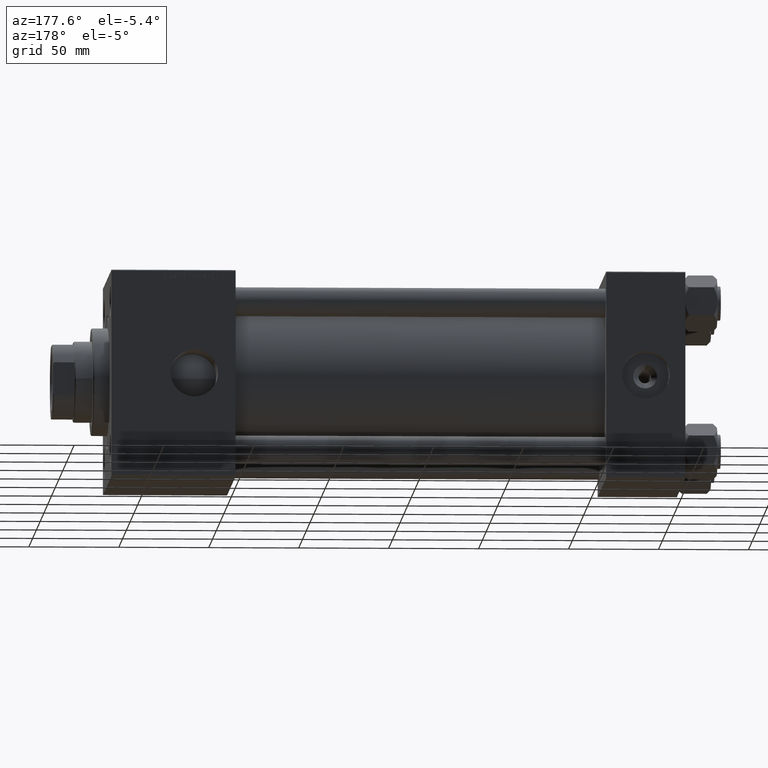
[diagram: clean part render]
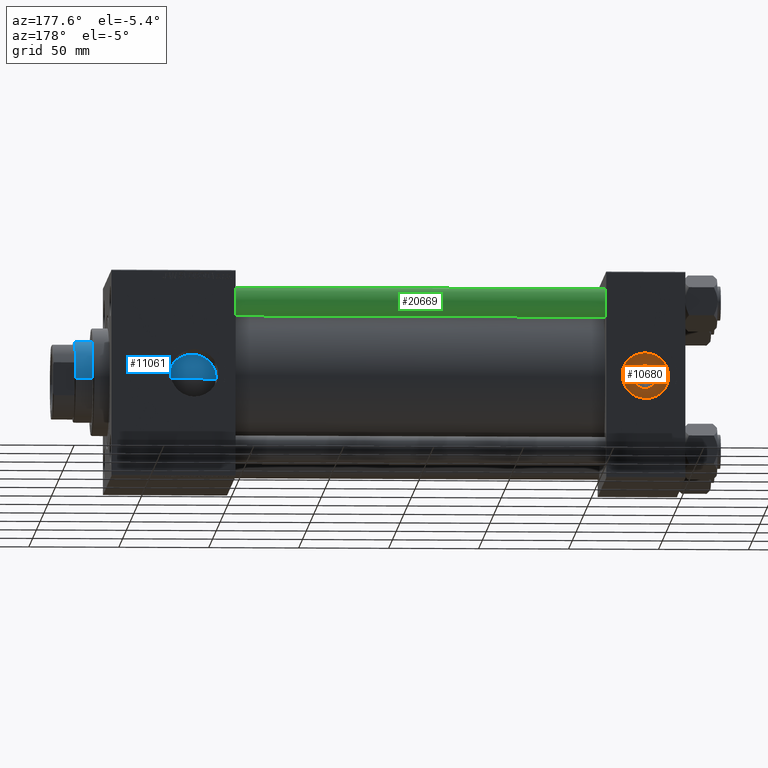
[diagram: same view with three faces highlighted in distinct colors, each labeled with its STEP entity id]
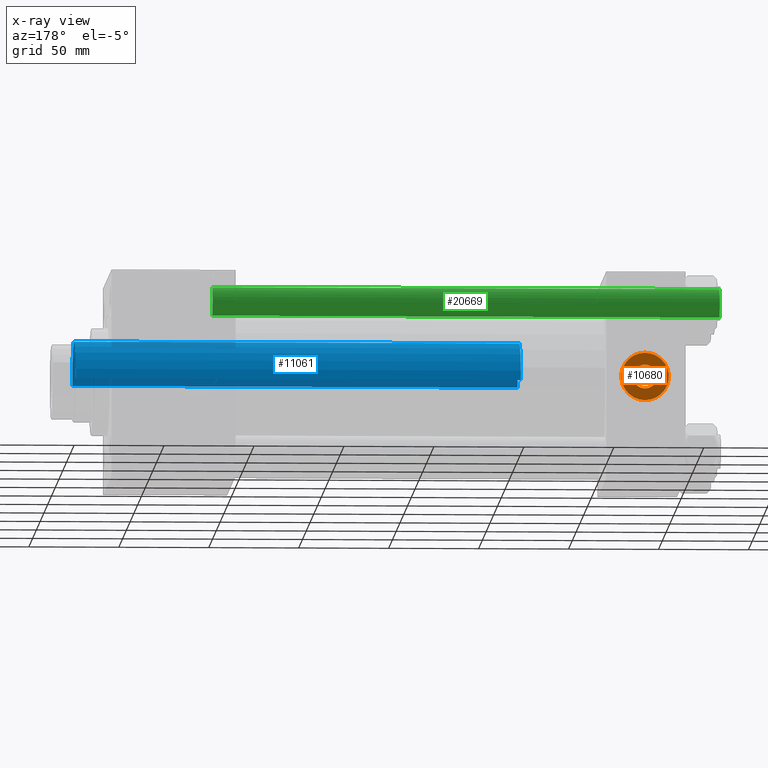
[diagram: x-ray of the same camera — body ghosted, the three highlighted faces saturated]
A machine part, auxiliary view with three faces highlighted in distinct colors.
The next image is the same camera in x-ray (body ghosted, the three faces saturated) — at least one of them is partly hidden behind the body in this view.
Their STEP definitions:

[orange] entity #10680 — the highlighted planar face has unit normal (0, 1, 0).
#165 = AXIS2_PLACEMENT_3D ( 'NONE', #14642, #22912, #18902 ) ;
#1369 = VERTEX_POINT ( 'NONE', #46999 ) ;
#1834 = ORIENTED_EDGE ( 'NONE', *, *, #45934, .T. ) ;
#2156 = DIRECTION ( 'NONE',  ( 0.000000000000000000, 1.000000000000000000, 0.000000000000000000 ) ) ;
#2960 = FACE_OUTER_BOUND ( 'NONE', #44324, .T. ) ;
#4486 = VERTEX_POINT ( 'NONE', #37154 ) ;
#5862 = DIRECTION ( 'NONE',  ( 0.000000000000000000, 0.000000000000000000, 1.000000000000000000 ) ) ;
#6595 = VERTEX_POINT ( 'NONE', #9896 ) ;
#7231 = AXIS2_PLACEMENT_3D ( 'NONE', #37670, #25142, #41684 ) ;
#8100 = ORIENTED_EDGE ( 'NONE', *, *, #21381, .T. ) ;
#9896 = CARTESIAN_POINT ( 'NONE',  ( 22.00000000000000000, 46.50000000000000000, 6.640000000000048530 ) ) ;
#10237 = EDGE_CURVE ( 'NONE', #48963, #6595, #18091, .T. ) ;
#10680 = ADVANCED_FACE ( 'NONE', ( #22455, #2960 ), #39000, .T. ) ;
#10708 = DIRECTION ( 'NONE',  ( 0.000000000000000000, -0.000000000000000000, 1.000000000000000000 ) ) ;
#11452 = ORIENTED_EDGE ( 'NONE', *, *, #10237, .T. ) ;
#11577 = AXIS2_PLACEMENT_3D ( 'NONE', #21931, #37682, #33678 ) ;
#11677 = CARTESIAN_POINT ( 'NONE',  ( 22.00000000000000000, 46.50000000000000000, -6.640000000000048530 ) ) ;
#14642 = CARTESIAN_POINT ( 'NONE',  ( 22.00000000000000000, 46.50000000000000000, 0.000000000000000000 ) ) ;
#18091 = CIRCLE ( 'NONE', #165, 6.640000000000048530 ) ;
#18902 = DIRECTION ( 'NONE',  ( 0.000000000000000000, 0.000000000000000000, 1.000000000000000000 ) ) ;
#21381 = EDGE_CURVE ( 'NONE', #4486, #1369, #38025, .T. ) ;
#21931 = CARTESIAN_POINT ( 'NONE',  ( 22.00000000000000000, 46.50000000000000000, 0.000000000000000000 ) ) ;
#22455 = FACE_BOUND ( 'NONE', #28655, .T. ) ;
#22912 = DIRECTION ( 'NONE',  ( -0.000000000000000000, -1.000000000000000000, -0.000000000000000000 ) ) ;
#25138 = CIRCLE ( 'NONE', #7231, 13.22000000000000419 ) ;
#25142 = DIRECTION ( 'NONE',  ( 0.000000000000000000, 1.000000000000000000, 0.000000000000000000 ) ) ;
#28475 = EDGE_CURVE ( 'NONE', #6595, #48963, #33906, .T. ) ;
#28655 = EDGE_LOOP ( 'NONE', ( #31853, #11452 ) ) ;
#30406 = DIRECTION ( 'NONE',  ( -0.000000000000000000, -1.000000000000000000, -0.000000000000000000 ) ) ;
#31853 = ORIENTED_EDGE ( 'NONE', *, *, #28475, .T. ) ;
#33678 = DIRECTION ( 'NONE',  ( 0.000000000000000000, 0.000000000000000000, 1.000000000000000000 ) ) ;
#33906 = CIRCLE ( 'NONE', #44963, 6.640000000000048530 ) ;
#37154 = CARTESIAN_POINT ( 'NONE',  ( 22.00000000000000000, 46.50000000000000000, -13.22000000000000419 ) ) ;
#37670 = CARTESIAN_POINT ( 'NONE',  ( 22.00000000000000000, 46.50000000000000000, 0.000000000000000000 ) ) ;
#37682 = DIRECTION ( 'NONE',  ( 0.000000000000000000, 1.000000000000000000, 0.000000000000000000 ) ) ;
#38025 = CIRCLE ( 'NONE', #11577, 13.22000000000000419 ) ;
#39000 = PLANE ( 'NONE',  #46277 ) ;
#39529 = CARTESIAN_POINT ( 'NONE',  ( 22.00000000000000000, 46.50000000000000000, 0.000000000000000000 ) ) ;
#41684 = DIRECTION ( 'NONE',  ( 0.000000000000000000, 0.000000000000000000, 1.000000000000000000 ) ) ;
#42434 = CARTESIAN_POINT ( 'NONE',  ( 22.00000000000000000, 46.50000000000000000, 0.000000000000000000 ) ) ;
#44324 = EDGE_LOOP ( 'NONE', ( #1834, #8100 ) ) ;
#44963 = AXIS2_PLACEMENT_3D ( 'NONE', #42434, #30406, #5862 ) ;
#45934 = EDGE_CURVE ( 'NONE', #1369, #4486, #25138, .T. ) ;
#46277 = AXIS2_PLACEMENT_3D ( 'NONE', #39529, #2156, #10708 ) ;
#46999 = CARTESIAN_POINT ( 'NONE',  ( 22.00000000000000000, 46.50000000000000000, 13.22000000000000419 ) ) ;
#48963 = VERTEX_POINT ( 'NONE', #11677 ) ;

[blue] entity #11061 — the highlighted cylindrical surface (partial cylindrical patch) has radius 22.5 mm, axis along (-1, 0, 0).
#122 = EDGE_LOOP ( 'NONE', ( #22949, #28511, #9142, #27726 ) ) ;
#655 = CARTESIAN_POINT ( 'NONE',  ( 0.000000000000000000, 0.000000000000000000, 46.00000000000000000 ) ) ;
#3415 = CYLINDRICAL_SURFACE ( 'NONE', #32615, 22.50000000000000355 ) ;
#3423 = EDGE_CURVE ( 'NONE', #45785, #23470, #12216, .T. ) ;
#4234 = VERTEX_POINT ( 'NONE', #14235 ) ;
#6490 = LINE ( 'NONE', #10757, #15762 ) ;
#7020 = CARTESIAN_POINT ( 'NONE',  ( 22.50000000000000355, 2.755455298081545172E-15, 293.4999999999999432 ) ) ;
#7840 = AXIS2_PLACEMENT_3D ( 'NONE', #30710, #22707, #14434 ) ;
#8296 = AXIS2_PLACEMENT_3D ( 'NONE', #655, #8420, #16427 ) ;
#8420 = DIRECTION ( 'NONE',  ( 0.000000000000000000, 0.000000000000000000, 1.000000000000000000 ) ) ;
#8634 = VERTEX_POINT ( 'NONE', #29880 ) ;
#9142 = ORIENTED_EDGE ( 'NONE', *, *, #45682, .T. ) ;
#10757 = CARTESIAN_POINT ( 'NONE',  ( -22.50000000000000355, 0.000000000000000000, 294.0000000000000000 ) ) ;
#11061 = ADVANCED_FACE ( 'NONE', ( #12473 ), #3415, .T. ) ;
#12216 = LINE ( 'NONE', #19971, #29833 ) ;
#12473 = FACE_OUTER_BOUND ( 'NONE', #122, .T. ) ;
#12647 = CARTESIAN_POINT ( 'NONE',  ( 22.50000000000000355, 2.755455298081545172E-15, 46.00000000000000000 ) ) ;
#14235 = CARTESIAN_POINT ( 'NONE',  ( -22.50000000000000355, 0.000000000000000000, 293.4999999999999432 ) ) ;
#14434 = DIRECTION ( 'NONE',  ( 1.000000000000000000, 0.000000000000000000, 0.000000000000000000 ) ) ;
#15434 = CARTESIAN_POINT ( 'NONE',  ( 0.000000000000000000, 0.000000000000000000, 294.0000000000000000 ) ) ;
#15762 = VECTOR ( 'NONE', #27568, 1000.000000000000000 ) ;
#15966 = DIRECTION ( 'NONE',  ( -1.000000000000000000, 0.000000000000000000, 0.000000000000000000 ) ) ;
#16427 = DIRECTION ( 'NONE',  ( 1.000000000000000000, 0.000000000000000000, 0.000000000000000000 ) ) ;
#19971 = CARTESIAN_POINT ( 'NONE',  ( 22.50000000000000355, 2.755455298081545172E-15, 294.0000000000000000 ) ) ;
#22707 = DIRECTION ( 'NONE',  ( 0.000000000000000000, 0.000000000000000000, -1.000000000000000000 ) ) ;
#22949 = ORIENTED_EDGE ( 'NONE', *, *, #3423, .F. ) ;
#23470 = VERTEX_POINT ( 'NONE', #12647 ) ;
#27568 = DIRECTION ( 'NONE',  ( -0.000000000000000000, -0.000000000000000000, -1.000000000000000000 ) ) ;
#27726 = ORIENTED_EDGE ( 'NONE', *, *, #51857, .T. ) ;
#28511 = ORIENTED_EDGE ( 'NONE', *, *, #36413, .T. ) ;
#28769 = DIRECTION ( 'NONE',  ( -0.000000000000000000, -0.000000000000000000, -1.000000000000000000 ) ) ;
#29833 = VECTOR ( 'NONE', #28769, 1000.000000000000000 ) ;
#29880 = CARTESIAN_POINT ( 'NONE',  ( -22.50000000000000355, 0.000000000000000000, 46.00000000000000000 ) ) ;
#30710 = CARTESIAN_POINT ( 'NONE',  ( 0.000000000000000000, 0.000000000000000000, 293.4999999999999432 ) ) ;
#30892 = CIRCLE ( 'NONE', #7840, 22.50000000000000355 ) ;
#32615 = AXIS2_PLACEMENT_3D ( 'NONE', #15434, #48022, #15966 ) ;
#36413 = EDGE_CURVE ( 'NONE', #45785, #4234, #30892, .T. ) ;
#45682 = EDGE_CURVE ( 'NONE', #4234, #8634, #6490, .T. ) ;
#45785 = VERTEX_POINT ( 'NONE', #7020 ) ;
#48022 = DIRECTION ( 'NONE',  ( -0.000000000000000000, -0.000000000000000000, -1.000000000000000000 ) ) ;
#50086 = CIRCLE ( 'NONE', #8296, 22.50000000000000355 ) ;
#51857 = EDGE_CURVE ( 'NONE', #8634, #23470, #50086, .T. ) ;

[green] entity #20669 — the highlighted cylindrical surface (edge-blend (fillet) strip) has radius 8 mm, axis along (-1, 0, 0).
#31 = LINE ( 'NONE', #36362, #24927 ) ;
#3638 = CARTESIAN_POINT ( 'NONE',  ( -8.000000000000000000, 0.000000000000000000, 283.0000000000000000 ) ) ;
#4582 = FACE_OUTER_BOUND ( 'NONE', #20244, .T. ) ;
#5099 = EDGE_CURVE ( 'NONE', #40509, #22196, #43402, .T. ) ;
#8465 = DIRECTION ( 'NONE',  ( -0.000000000000000000, -0.000000000000000000, 1.000000000000000000 ) ) ;
#8587 = DIRECTION ( 'NONE',  ( -1.000000000000000000, 0.000000000000000000, 0.000000000000000000 ) ) ;
#9484 = CARTESIAN_POINT ( 'NONE',  ( 8.000000000000000000, 9.797174393178825657E-16, 0.5000000000000004441 ) ) ;
#9659 = EDGE_CURVE ( 'NONE', #51609, #40509, #31, .T. ) ;
#10601 = DIRECTION ( 'NONE',  ( -0.000000000000000000, -0.000000000000000000, -1.000000000000000000 ) ) ;
#11953 = DIRECTION ( 'NONE',  ( 0.000000000000000000, 0.000000000000000000, -1.000000000000000000 ) ) ;
#13262 = CARTESIAN_POINT ( 'NONE',  ( 8.000000000000000000, 9.797174393178825657E-16, 282.5000000000000000 ) ) ;
#13421 = ORIENTED_EDGE ( 'NONE', *, *, #9659, .T. ) ;
#16076 = DIRECTION ( 'NONE',  ( -0.000000000000000000, -0.000000000000000000, -1.000000000000000000 ) ) ;
#16078 = DIRECTION ( 'NONE',  ( -0.000000000000000000, -0.000000000000000000, -1.000000000000000000 ) ) ;
#16407 = VECTOR ( 'NONE', #10601, 1000.000000000000000 ) ;
#19517 = AXIS2_PLACEMENT_3D ( 'NONE', #21010, #8465, #24489 ) ;
#19669 = LINE ( 'NONE', #3638, #16407 ) ;
#20112 = CARTESIAN_POINT ( 'NONE',  ( -8.000000000000000000, 0.000000000000000000, 282.5000000000000000 ) ) ;
#20244 = EDGE_LOOP ( 'NONE', ( #29945, #13421, #52843, #31221 ) ) ;
#20669 = ADVANCED_FACE ( 'NONE', ( #4582 ), #52679, .T. ) ;
#21010 = CARTESIAN_POINT ( 'NONE',  ( 0.000000000000000000, 0.000000000000000000, 0.5000000000000004441 ) ) ;
#22196 = VERTEX_POINT ( 'NONE', #49279 ) ;
#23966 = CARTESIAN_POINT ( 'NONE',  ( 0.000000000000000000, 0.000000000000000000, 282.5000000000000000 ) ) ;
#24489 = DIRECTION ( 'NONE',  ( 1.000000000000000000, 0.000000000000000000, 0.000000000000000000 ) ) ;
#24927 = VECTOR ( 'NONE', #16078, 1000.000000000000000 ) ;
#28499 = DIRECTION ( 'NONE',  ( 1.000000000000000000, 0.000000000000000000, 0.000000000000000000 ) ) ;
#29945 = ORIENTED_EDGE ( 'NONE', *, *, #43590, .T. ) ;
#31194 = VERTEX_POINT ( 'NONE', #20112 ) ;
#31221 = ORIENTED_EDGE ( 'NONE', *, *, #40252, .F. ) ;
#36362 = CARTESIAN_POINT ( 'NONE',  ( 8.000000000000000000, 9.797174393178825657E-16, 283.0000000000000000 ) ) ;
#39543 = AXIS2_PLACEMENT_3D ( 'NONE', #23966, #11953, #28499 ) ;
#40252 = EDGE_CURVE ( 'NONE', #31194, #22196, #19669, .T. ) ;
#40382 = CIRCLE ( 'NONE', #39543, 8.000000000000000000 ) ;
#40509 = VERTEX_POINT ( 'NONE', #9484 ) ;
#43402 = CIRCLE ( 'NONE', #19517, 8.000000000000000000 ) ;
#43590 = EDGE_CURVE ( 'NONE', #31194, #51609, #40382, .T. ) ;
#45168 = CARTESIAN_POINT ( 'NONE',  ( 0.000000000000000000, 0.000000000000000000, 283.0000000000000000 ) ) ;
#49057 = AXIS2_PLACEMENT_3D ( 'NONE', #45168, #16076, #8587 ) ;
#49279 = CARTESIAN_POINT ( 'NONE',  ( -8.000000000000000000, 0.000000000000000000, 0.5000000000000004441 ) ) ;
#51609 = VERTEX_POINT ( 'NONE', #13262 ) ;
#52679 = CYLINDRICAL_SURFACE ( 'NONE', #49057, 8.000000000000000000 ) ;
#52843 = ORIENTED_EDGE ( 'NONE', *, *, #5099, .T. ) ;